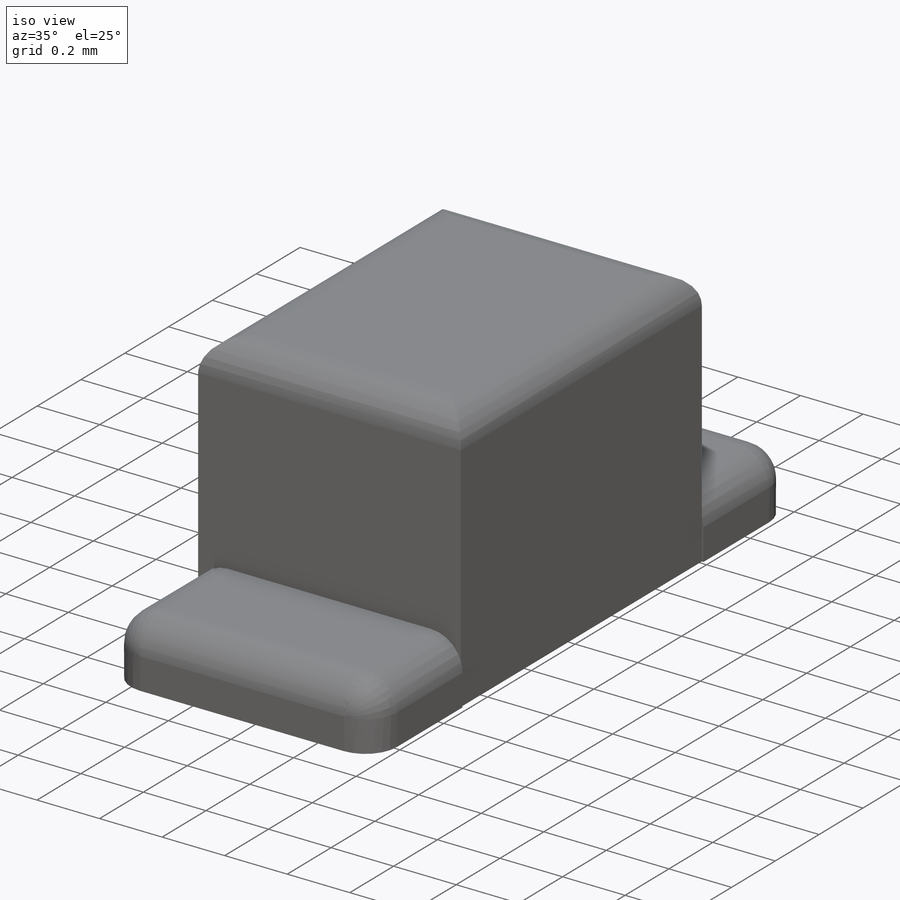
[diagram: iso view]
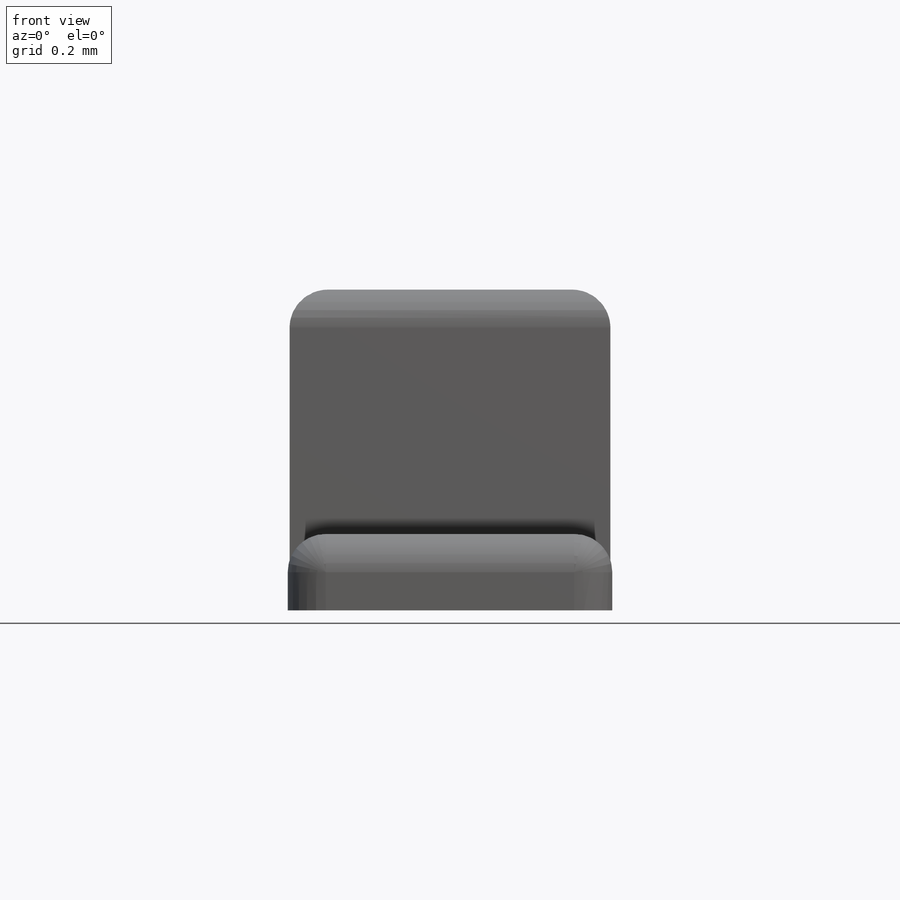
[diagram: front view]
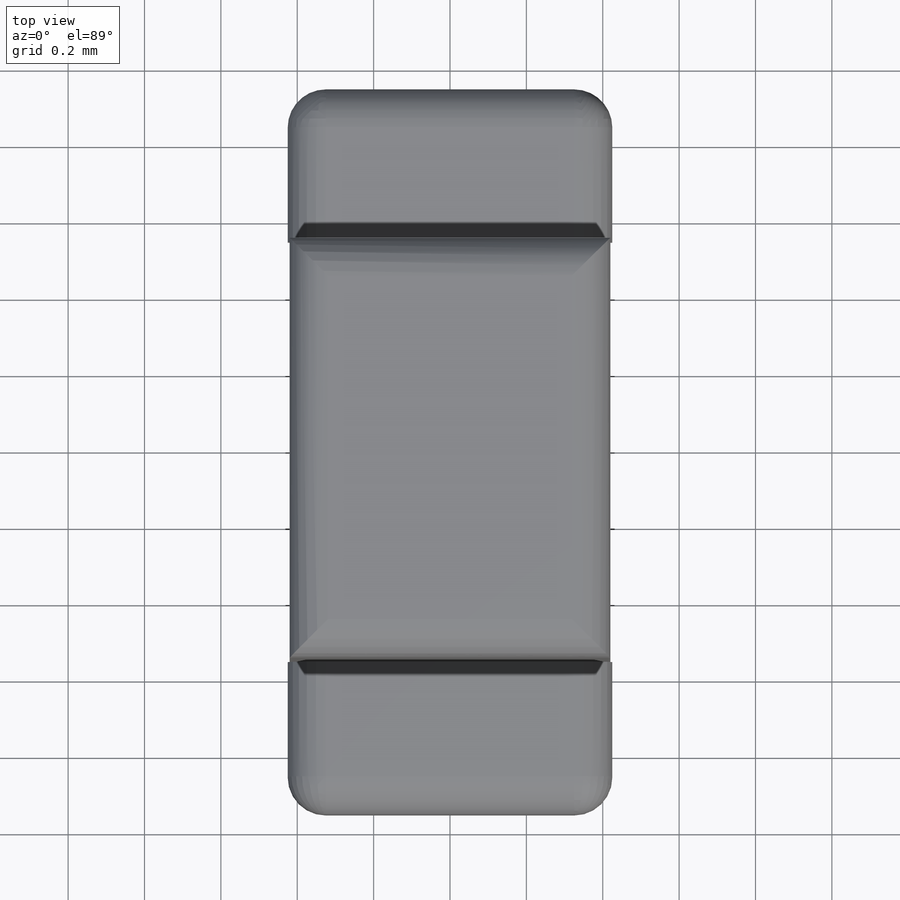
[diagram: top view]
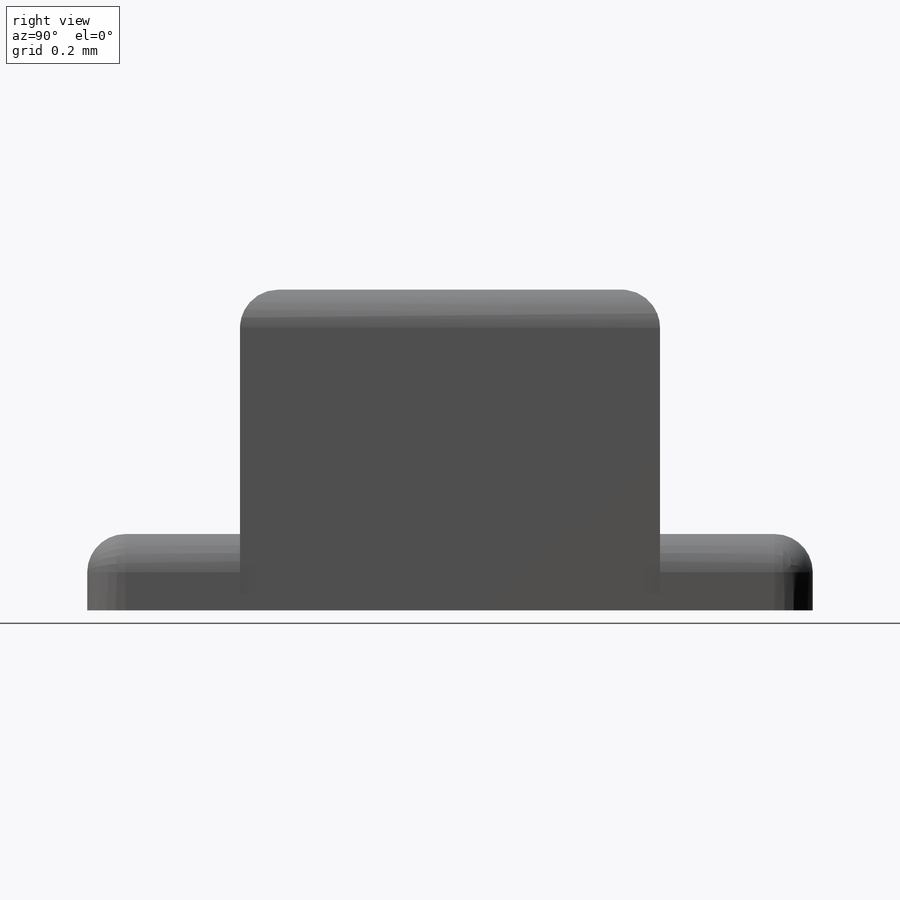
[diagram: right view]
SOLIDWORKS PART (.sldprt)
format: sldprt  version: not decoded by parser v0  size: 244,736 bytes
history: native  units: mm
features: fillet x3, sketch x2, extrude x2, material x1, mirror x1 (+13 scaffold rows collapsed)
feature tree (22):
  scaffold x13  (default folders/planes/origin — collapsed)
  material  "Material <not specified>"
  sketch  "Sketch1"  dims[D1=0.84mm D2=1.1mm]
  extrude  "Boss-Extrude1"  Depth=0.84mm
  sketch  "Sketch2"  dims[c1.D1=0.2mm c2.D1=90.0deg c3.D1=0.2mm c3.D2=0.0mm c3.D3=0.85mm c3.D4=0.005mm]
  extrude  "Boss-Extrude2"  Depth=0.4mm
  fillet  "Fillet1"  Radius=0.1mm
  mirror  "Mirror1"
  fillet  "Fillet2"  Radius=0.1mm
  fillet  "Fillet3"  Radius=0.1mm
decode coverage: 7 of 8 modeling features carry decoded parameters
note: suppression state not decoded; provenance and decode notes live in map.json
